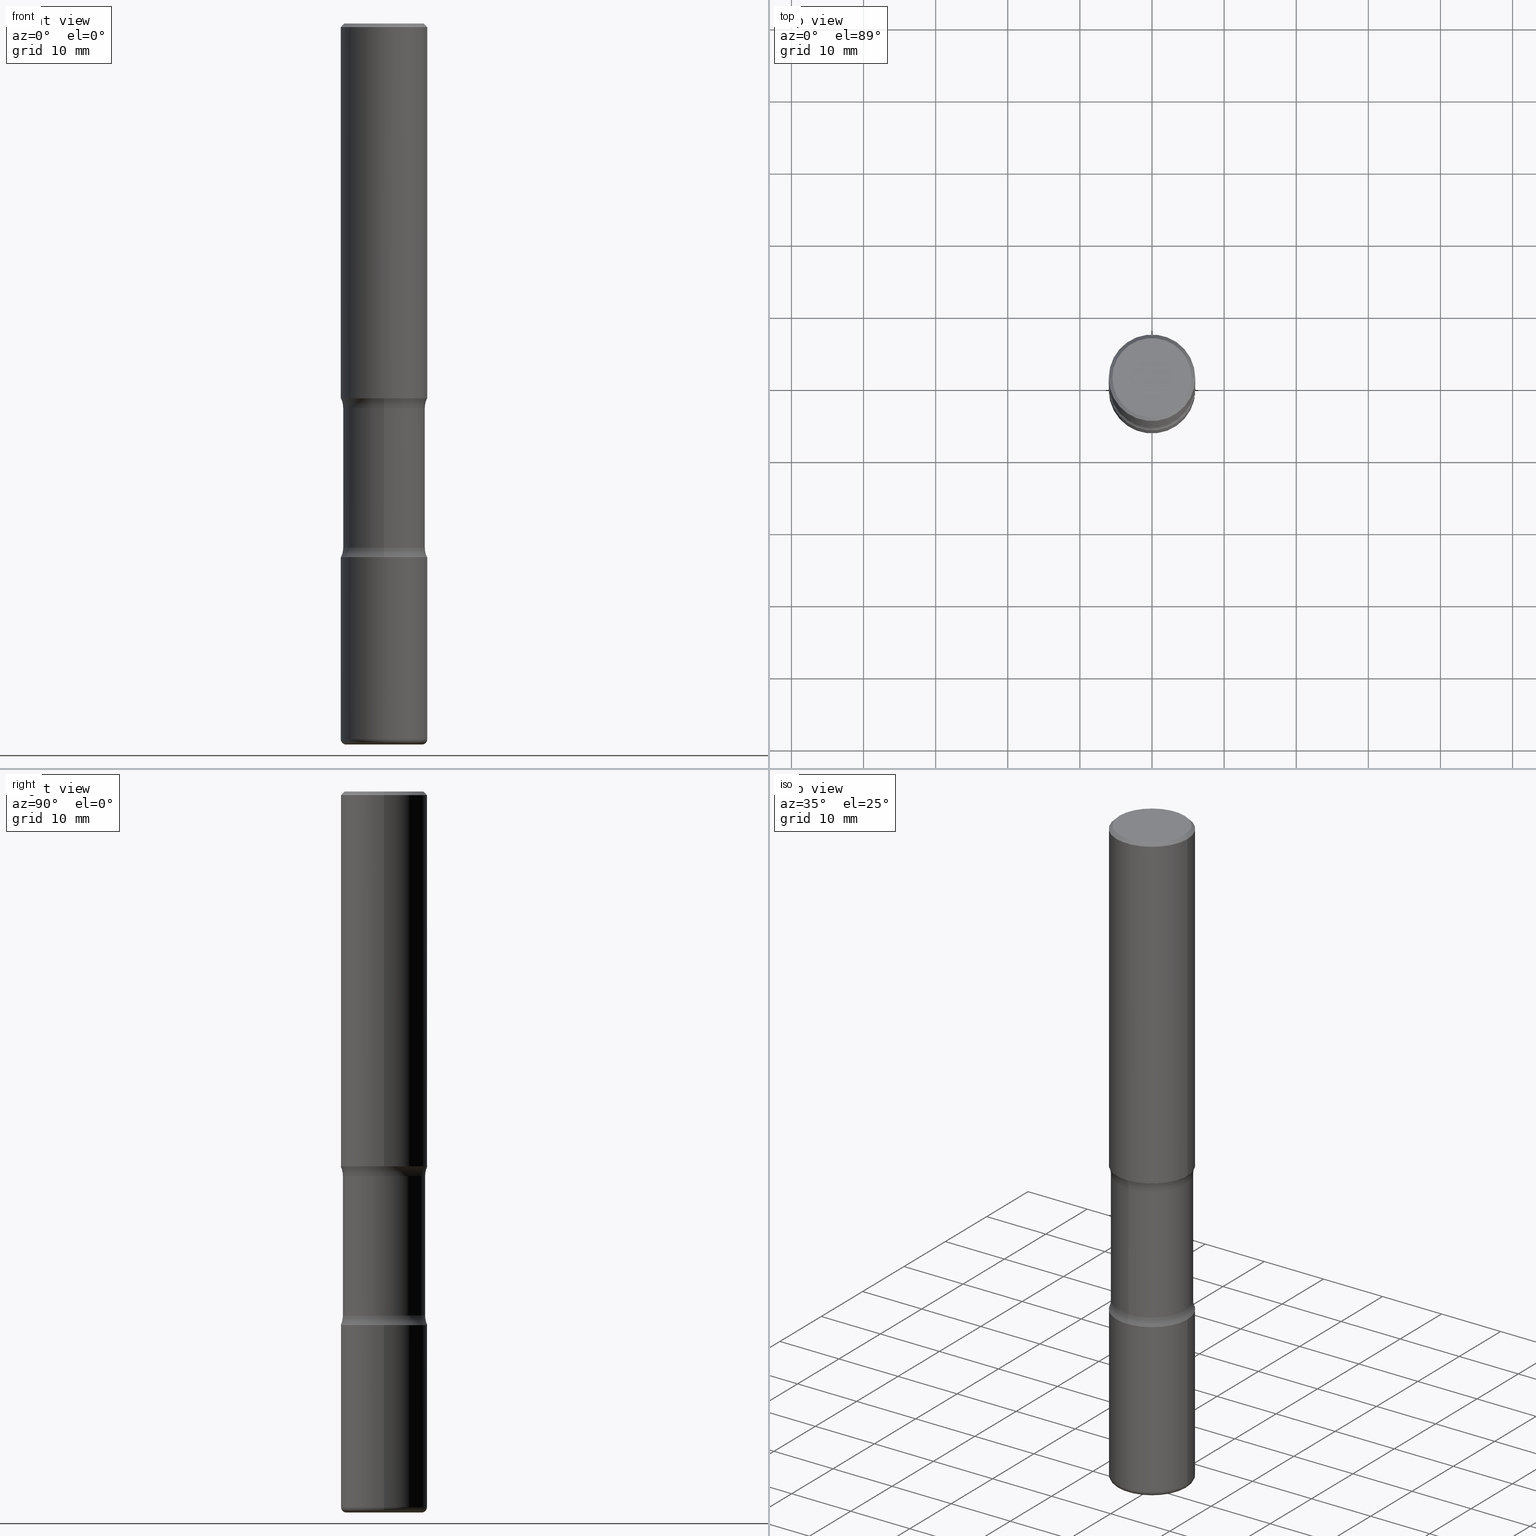
[diagram: canonical four-view strip — front | top / right | iso, engineering-drawing reading convention]
A machine part, canonical four-view strip (front | top / right | iso — engineering-drawing reading convention). The complete STEP part file that produces these views, byte-faithful:
ISO-10303-21;
HEADER;
FILE_DESCRIPTION (( 'STEP AP203' ),
    '1' );
FILE_NAME ('47695.STEP',
    '2024-03-02T07:20:39',
    ( '' ),
    ( '' ),
    'SwSTEP 2.0',
    'SolidWorks 2023',
    '' );
FILE_SCHEMA (( 'CONFIG_CONTROL_DESIGN' ));
ENDSEC;

DATA;
#1 = ORIENTED_EDGE ( 'NONE', *, *, #227, .F. ) ;
#2 = ORIENTED_EDGE ( 'NONE', *, *, #40, .T. ) ;
#3 = AXIS2_PLACEMENT_3D ( 'NONE', #316, #319, #182 ) ;
#4 = PLANE ( 'NONE',  #226 ) ;
#5 = CC_DESIGN_PERSON_AND_ORGANIZATION_ASSIGNMENT ( #308, #270, ( #353 ) ) ;
#6 = CARTESIAN_POINT ( 'NONE',  ( -0.2361999999999999933, 1.678301941865356591E-15, -1.161852468318208757E-29 ) ) ;
#7 = CARTESIAN_POINT ( 'NONE',  ( 1.566976824872894642E-15, 0.2243999999999863049, -3.937000000000000721 ) ) ;
#8 = COORDINATED_UNIVERSAL_TIME_OFFSET ( 5, 0, .BEHIND. ) ;
#9 = FACE_OUTER_BOUND ( 'NONE', #93, .T. ) ;
#10 = VERTEX_POINT ( 'NONE', #262 ) ;
#11 = CARTESIAN_POINT ( 'NONE',  ( 1.566976824872867821E-15, 0.2243999999999899686, -2.860383398826405799 ) ) ;
#12 =( NAMED_UNIT ( * ) SI_UNIT ( $, .STERADIAN. ) SOLID_ANGLE_UNIT ( ) );
#13 = CARTESIAN_POINT ( 'NONE',  ( 0.2361999999999999933, -1.649375784469496131E-15, 1.151752954443000088E-29 ) ) ;
#14 = FACE_OUTER_BOUND ( 'NONE', #55, .T. ) ;
#15 = ORIENTED_EDGE ( 'NONE', *, *, #497, .F. ) ;
#16 = CIRCLE ( 'NONE', #3, 0.2161999999999998368 ) ;
#17 = PERSON_AND_ORGANIZATION ( #84, #499 ) ;
#18 = SECURITY_CLASSIFICATION ( '', '', #145 ) ;
#19 = CARTESIAN_POINT ( 'NONE',  ( 7.124628819939777829E-29, -1.017208173258562247E-14, -2.913400000000000212 ) ) ;
#20 = ORIENTED_EDGE ( 'NONE', *, *, #526, .F. ) ;
#21 = CARTESIAN_POINT ( 'NONE',  ( 9.554446625765329033E-29, -1.364121759086017004E-14, -3.907000000000000028 ) ) ;
#22 = DIRECTION ( 'NONE',  ( -2.445468806185136597E-29, 3.491481338843145583E-15, 1.000000000000000000 ) ) ;
#23 = ADVANCED_FACE ( 'NONE', ( #274 ), #444, .F. ) ;
#24 = DIRECTION ( 'NONE',  ( -2.445468806185136877E-29, 3.491481338843145188E-15, 1.000000000000000000 ) ) ;
#25 = CONICAL_SURFACE ( 'NONE', #320, 0.2361999999999998823, 0.7853981633974479459 ) ;
#26 = CIRCLE ( 'NONE', #356, 0.1249999999999999029 ) ;
#27 = APPLICATION_CONTEXT ( 'configuration controlled 3d designs of mechanical parts and assemblies' ) ;
#28 =( GEOMETRIC_REPRESENTATION_CONTEXT ( 3 ) GLOBAL_UNCERTAINTY_ASSIGNED_CONTEXT ( ( #240 ) ) GLOBAL_UNIT_ASSIGNED_CONTEXT ( ( #87, #115, #12 ) ) REPRESENTATION_CONTEXT ( 'NONE', 'WORKASPACE' ) );
#29 = LOCAL_TIME ( 2, 20, 39.00000000000000000, #52 ) ;
#30 = DIRECTION ( 'NONE',  ( 0.7071067811865472397, -7.319954787623254468E-15, -0.7071067811865477948 ) ) ;
#31 = LINE ( 'NONE', #61, #199 ) ;
#32 = DIRECTION ( 'NONE',  ( 1.000000000000000000, -6.982962677686267499E-15, 0.000000000000000000 ) ) ;
#33 = VERTEX_POINT ( 'NONE', #216 ) ;
#34 = APPROVAL ( #264, 'UNSPECIFIED' ) ;
#35 = AXIS2_PLACEMENT_3D ( 'NONE', #184, #46, #358 ) ;
#36 = AXIS2_PLACEMENT_3D ( 'NONE', #171, #306, #138 ) ;
#37 = DIRECTION ( 'NONE',  ( 6.982962677686265922E-15, 1.000000000000000000, -3.469747663417773452E-15 ) ) ;
#38 = ORIENTED_EDGE ( 'NONE', *, *, #279, .T. ) ;
#39 = ORIENTED_EDGE ( 'NONE', *, *, #488, .F. ) ;
#40 = EDGE_CURVE ( 'NONE', #170, #33, #536, .T. ) ;
#41 = VECTOR ( 'NONE', #281, 39.37007874015748143 ) ;
#42 = VERTEX_POINT ( 'NONE', #144 ) ;
#43 = CARTESIAN_POINT ( 'NONE',  ( 9.710227154047748282E-29, -1.362793696358492956E-14, -3.937000000000000277 ) ) ;
#44 = ORIENTED_EDGE ( 'NONE', *, *, #550, .F. ) ;
#45 = ADVANCED_FACE ( 'NONE', ( #450 ), #397, .F. ) ;
#46 = DIRECTION ( 'NONE',  ( 2.438088387897960049E-29, -3.491481338843145188E-15, -1.000000000000000000 ) ) ;
#47 = MANIFOLD_SOLID_BREP ( 'Body-Move/Copy2[2]', #120 ) ;
#48 = AXIS2_PLACEMENT_3D ( 'NONE', #282, #232, #464 ) ;
#49 = DIRECTION ( 'NONE',  ( 2.525985086076564115E-29, -3.376177443336566513E-15, -1.000000000000000000 ) ) ;
#50 = ORIENTED_EDGE ( 'NONE', *, *, #550, .T. ) ;
#51 = CARTESIAN_POINT ( 'NONE',  ( 6.994978375559792251E-29, -9.986975258939122984E-15, -2.860383398826405354 ) ) ;
#52 = COORDINATED_UNIVERSAL_TIME_OFFSET ( 5, 0, .BEHIND. ) ;
#53 = ORIENTED_EDGE ( 'NONE', *, *, #474, .F. ) ;
#54 = CC_DESIGN_DATE_AND_TIME_ASSIGNMENT ( #401, #535, ( #353 ) ) ;
#55 = EDGE_LOOP ( 'NONE', ( #484, #62, #71, #237 ) ) ;
#56 = CARTESIAN_POINT ( 'NONE',  ( -1.579972688886713168E-15, -0.2244000000000099804, -2.860383398826404466 ) ) ;
#57 = DIRECTION ( 'NONE',  ( 2.525985086076564115E-29, -3.376177443336566513E-15, -1.000000000000000000 ) ) ;
#58 = AXIS2_PLACEMENT_3D ( 'NONE', #135, #57, #268 ) ;
#59 = AXIS2_PLACEMENT_3D ( 'NONE', #512, #294, #32 ) ;
#60 = ORIENTED_EDGE ( 'NONE', *, *, #509, .F. ) ;
#61 = CARTESIAN_POINT ( 'NONE',  ( 0.2362000000000002153, -1.649375784469497708E-15, 1.151752954443001069E-29 ) ) ;
#62 = ORIENTED_EDGE ( 'NONE', *, *, #214, .T. ) ;
#63 = AXIS2_PLACEMENT_3D ( 'NONE', #288, #545, #153 ) ;
#64 = AXIS2_PLACEMENT_3D ( 'NONE', #21, #543, #400 ) ;
#65 = LOCAL_TIME ( 2, 20, 39.00000000000000000, #207 ) ;
#66 = DIRECTION ( 'NONE',  ( 6.982962677686265922E-15, 1.000000000000000000, -2.313165108945183485E-15 ) ) ;
#67 = ORIENTED_EDGE ( 'NONE', *, *, #86, .T. ) ;
#68 = CARTESIAN_POINT ( 'NONE',  ( -1.043851414335219820E-46, 1.490343170380447200E-32, 4.268512490100411279E-18 ) ) ;
#69 = ADVANCED_FACE ( 'NONE', ( #9 ), #25, .T. ) ;
#70 = CARTESIAN_POINT ( 'NONE',  ( -0.2362000000000001598, -1.930493169962915017E-15, -2.047200000000000131 ) ) ;
#71 = ORIENTED_EDGE ( 'NONE', *, *, #227, .T. ) ;
#72 = CIRCLE ( 'NONE', #393, 0.2362000000000001321 ) ;
#73 = AXIS2_PLACEMENT_3D ( 'NONE', #326, #200, #371 ) ;
#74 = ORIENTED_EDGE ( 'NONE', *, *, #208, .F. ) ;
#75 = DIRECTION ( 'NONE',  ( 2.438088387897960049E-29, -3.491481338843145188E-15, -1.000000000000000000 ) ) ;
#76 = FACE_OUTER_BOUND ( 'NONE', #480, .T. ) ;
#77 = ADVANCED_FACE ( 'NONE', ( #140 ), #389, .T. ) ;
#78 = ORIENTED_EDGE ( 'NONE', *, *, #279, .F. ) ;
#79 = CARTESIAN_POINT ( 'NONE',  ( 5.006363740022212241E-29, -7.147760596879688202E-15, -2.047200000000000131 ) ) ;
#80 = FACE_OUTER_BOUND ( 'NONE', #528, .T. ) ;
#81 = CLOSED_SHELL ( 'NONE', ( #77, #365, #558, #479, #45, #305, #119, #313 ) ) ;
#82 = AXIS2_PLACEMENT_3D ( 'NONE', #449, #146, #142 ) ;
#83 = EDGE_LOOP ( 'NONE', ( #301, #50, #533, #272 ) ) ;
#84 = PERSON ( 'UNSPECIFIED', 'UNSPECIFIED', 'UNSPECIFIED', ('UNSPECIFIED'), ('UNSPECIFIED'), ('UNSPECIFIED') ) ;
#85 = EDGE_LOOP ( 'NONE', ( #159, #60 ) ) ;
#86 = EDGE_CURVE ( 'NONE', #515, #447, #373, .T. ) ;
#87 =( CONVERSION_BASED_UNIT ( 'INCH', #377 ) LENGTH_UNIT ( ) NAMED_UNIT ( #363 ) );
#88 = LINE ( 'NONE', #13, #41 ) ;
#89 = ORIENTED_EDGE ( 'NONE', *, *, #391, .F. ) ;
#90 = DIRECTION ( 'NONE',  ( 2.525985086076564115E-29, -3.376177443336566513E-15, -1.000000000000000000 ) ) ;
#91 = PERSON_AND_ORGANIZATION_ROLE ( 'design_owner' ) ;
#92 = CIRCLE ( 'NONE', #381, 0.2362000000000001321 ) ;
#93 = EDGE_LOOP ( 'NONE', ( #161, #552, #99, #98 ) ) ;
#94 = CIRCLE ( 'NONE', #233, 0.2243999999999999606 ) ;
#95 = CARTESIAN_POINT ( 'NONE',  ( -1.620449627073587747E-15, -0.2362000000000074318, -2.047199999999999243 ) ) ;
#96 = CARTESIAN_POINT ( 'NONE',  ( -0.2362000000000000766, -1.196291564899481365E-14, -3.907000000000000028 ) ) ;
#97 = EDGE_CURVE ( 'NONE', #204, #430, #156, .T. ) ;
#98 = ORIENTED_EDGE ( 'NONE', *, *, #202, .T. ) ;
#99 = ORIENTED_EDGE ( 'NONE', *, *, #372, .T. ) ;
#100 = PERSON_AND_ORGANIZATION_ROLE ( 'design_supplier' ) ;
#101 = DIRECTION ( 'NONE',  ( 2.525985086076564115E-29, -3.376177443336566513E-15, -1.000000000000000000 ) ) ;
#102 = AXIS2_PLACEMENT_3D ( 'NONE', #331, #511, #505 ) ;
#103 = AXIS2_PLACEMENT_3D ( 'NONE', #388, #299, #483 ) ;
#104 = DIRECTION ( 'NONE',  ( 2.525985086076564115E-29, -3.376177443336566513E-15, -1.000000000000000000 ) ) ;
#105 = ADVANCED_FACE ( 'NONE', ( #14 ), #183, .T. ) ;
#106 = FACE_OUTER_BOUND ( 'NONE', #298, .T. ) ;
#107 = DIRECTION ( 'NONE',  ( -2.445468806185136597E-29, 3.491481338843145583E-15, 1.000000000000000000 ) ) ;
#108 = DIRECTION ( 'NONE',  ( 6.982962677686265922E-15, 1.000000000000000000, -2.313165108945183485E-15 ) ) ;
#109 = TOROIDAL_SURFACE ( 'NONE', #547, 0.3493999999999998218, 0.1249999999999999029 ) ;
#110 = AXIS2_PLACEMENT_3D ( 'NONE', #446, #251, #493 ) ;
#111 = CC_DESIGN_PERSON_AND_ORGANIZATION_ASSIGNMENT ( #343, #91, ( #445 ) ) ;
#112 = CARTESIAN_POINT ( 'NONE',  ( 0.2362000000000000766, -1.529059337532966657E-14, -3.907000000000000028 ) ) ;
#113 = ORIENTED_EDGE ( 'NONE', *, *, #287, .T. ) ;
#114 = EDGE_LOOP ( 'NONE', ( #38, #551 ) ) ;
#115 =( NAMED_UNIT ( * ) PLANE_ANGLE_UNIT ( ) SI_UNIT ( $, .RADIAN. ) );
#116 = ORIENTED_EDGE ( 'NONE', *, *, #137, .T. ) ;
#117 = DIRECTION ( 'NONE',  ( 1.000000000000000000, -6.982962677686266711E-15, 4.876217060660159599E-29 ) ) ;
#118 = VERTEX_POINT ( 'NONE', #420 ) ;
#119 = ADVANCED_FACE ( 'NONE', ( #167 ), #309, .F. ) ;
#120 = CLOSED_SHELL ( 'NONE', ( #154, #336, #69, #518, #296, #105 ) ) ;
#121 = AXIS2_PLACEMENT_3D ( 'NONE', #79, #254, #429 ) ;
#122 = CARTESIAN_POINT ( 'NONE',  ( 6.990709676060807691E-29, -9.993088279580958225E-15, -2.860383398826405354 ) ) ;
#123 = ORIENTED_EDGE ( 'NONE', *, *, #443, .T. ) ;
#124 = DIRECTION ( 'NONE',  ( 6.982962677686265922E-15, 1.000000000000000000, -3.376177443336566513E-15 ) ) ;
#125 = DIRECTION ( 'NONE',  ( -2.525985086076564115E-29, 3.376177443336566513E-15, 1.000000000000000000 ) ) ;
#126 = EDGE_LOOP ( 'NONE', ( #295, #2, #53, #1 ) ) ;
#127 = DIRECTION ( 'NONE',  ( 2.525985086076564115E-29, -3.376177443336566513E-15, -1.000000000000000000 ) ) ;
#128 = AXIS2_PLACEMENT_3D ( 'NONE', #160, #197, #322 ) ;
#129 = ADVANCED_FACE ( 'NONE', ( #487 ), #418, .T. ) ;
#130 = VERTEX_POINT ( 'NONE', #285 ) ;
#131 = PRODUCT_DEFINITION_FORMATION_WITH_SPECIFIED_SOURCE ( 'ANY', '', #445, .NOT_KNOWN. ) ;
#132 = APPROVAL_DATE_TIME ( #339, #380 ) ;
#133 = ORIENTED_EDGE ( 'NONE', *, *, #391, .T. ) ;
#134 = DIRECTION ( 'NONE',  ( -2.438088387897960049E-29, 3.491481338843145188E-15, 1.000000000000000000 ) ) ;
#135 = CARTESIAN_POINT ( 'NONE',  ( 5.006363740022212241E-29, -7.147760596879688202E-15, -2.047200000000000131 ) ) ;
#136 = PRODUCT_DEFINITION_SHAPE ( 'NONE', 'NONE',  #353 ) ;
#137 = EDGE_CURVE ( 'NONE', #307, #10, #284, .T. ) ;
#138 = DIRECTION ( 'NONE',  ( -1.000000000000000000, 6.982962677686267499E-15, 0.000000000000000000 ) ) ;
#139 = CIRCLE ( 'NONE', #59, 0.2361999999999998823 ) ;
#140 = FACE_OUTER_BOUND ( 'NONE', #348, .T. ) ;
#141 = EDGE_LOOP ( 'NONE', ( #198, #330 ) ) ;
#142 = DIRECTION ( 'NONE',  ( 1.000000000000000000, -6.982962677686265133E-15, 0.000000000000000000 ) ) ;
#143 = DIRECTION ( 'NONE',  ( -2.445468806185136597E-29, 3.491481338843145583E-15, 1.000000000000000000 ) ) ;
#144 = CARTESIAN_POINT ( 'NONE',  ( -0.2062000000000002442, -1.212186927944147467E-14, -3.936999999999999389 ) ) ;
#145 = SECURITY_CLASSIFICATION_LEVEL ( 'unclassified' ) ;
#146 = DIRECTION ( 'NONE',  ( -2.445468806185136597E-29, 3.491481338843145583E-15, 1.000000000000000000 ) ) ;
#147 = DATE_TIME_ROLE ( 'classification_date' ) ;
#148 = EDGE_CURVE ( 'NONE', #164, #494, #31, .T. ) ;
#149 = AXIS2_PLACEMENT_3D ( 'NONE', #235, #413, #387 ) ;
#150 = DIRECTION ( 'NONE',  ( -2.445468806185136597E-29, 3.491481338843145583E-15, 1.000000000000000000 ) ) ;
#151 = DIRECTION ( 'NONE',  ( 1.000000000000000000, -6.982962677686266711E-15, 4.876176775795935793E-29 ) ) ;
#152 = CYLINDRICAL_SURFACE ( 'NONE', #374, 0.2362000000000002153 ) ;
#153 = DIRECTION ( 'NONE',  ( -1.000000000000000000, 6.982962677686265922E-15, -4.876176775795935793E-29 ) ) ;
#154 = ADVANCED_FACE ( 'NONE', ( #466 ), #457, .T. ) ;
#155 = CARTESIAN_POINT ( 'NONE',  ( 7.124628819939777829E-29, -1.017208173258562247E-14, -2.913400000000000212 ) ) ;
#156 = CIRCLE ( 'NONE', #341, 0.2362000000000002431 ) ;
#157 = AXIS2_PLACEMENT_3D ( 'NONE', #122, #548, #467 ) ;
#158 = CARTESIAN_POINT ( 'NONE',  ( -0.2362000000000001321, -1.022834771985753829E-14, -2.913400000000000212 ) ) ;
#159 = ORIENTED_EDGE ( 'NONE', *, *, #443, .F. ) ;
#160 = CARTESIAN_POINT ( 'NONE',  ( 9.627810689950881427E-29, -1.374596203102546184E-14, -3.936999999999999389 ) ) ;
#161 = ORIENTED_EDGE ( 'NONE', *, *, #137, .F. ) ;
#162 = PRODUCT_RELATED_PRODUCT_CATEGORY ( 'detail', '', ( #445 ) ) ;
#163 = CIRCLE ( 'NONE', #431, 0.1249999999999999029 ) ;
#164 = VERTEX_POINT ( 'NONE', #112 ) ;
#165 = CARTESIAN_POINT ( 'NONE',  ( 5.088323202950023588E-29, -7.401163270367792936E-15, -2.100216601173595432 ) ) ;
#166 = FACE_OUTER_BOUND ( 'NONE', #379, .T. ) ;
#167 = FACE_OUTER_BOUND ( 'NONE', #510, .T. ) ;
#168 = CARTESIAN_POINT ( 'NONE',  ( 5.006363740022212241E-29, -7.147760596879688202E-15, -2.047200000000000131 ) ) ;
#169 = EDGE_CURVE ( 'NONE', #130, #515, #72, .T. ) ;
#170 = VERTEX_POINT ( 'NONE', #70 ) ;
#171 = CARTESIAN_POINT ( 'NONE',  ( 4.890937612370289799E-31, -6.982962677686315028E-17, -0.02000000000000006981 ) ) ;
#172 = AXIS2_PLACEMENT_3D ( 'NONE', #500, #107, #459 ) ;
#173 = ORIENTED_EDGE ( 'NONE', *, *, #542, .T. ) ;
#174 = APPROVAL_PERSON_ORGANIZATION ( #323, #321, #460 ) ;
#175 = DIRECTION ( 'NONE',  ( -1.000000000000000000, 6.982962677686265922E-15, -4.883557194083112340E-29 ) ) ;
#176 = DIRECTION ( 'NONE',  ( -2.445468806185136877E-29, 3.491481338843145188E-15, 1.000000000000000000 ) ) ;
#177 = EDGE_CURVE ( 'NONE', #560, #555, #302, .T. ) ;
#178 = FACE_OUTER_BOUND ( 'NONE', #221, .T. ) ;
#179 = CALENDAR_DATE ( 2024, 2, 3 ) ;
#180 = CARTESIAN_POINT ( 'NONE',  ( 4.890937612370289799E-31, -6.982962677686315028E-17, -0.02000000000000006981 ) ) ;
#181 = ORIENTED_EDGE ( 'NONE', *, *, #372, .F. ) ;
#182 = DIRECTION ( 'NONE',  ( 1.000000000000000000, -6.982962677686266711E-15, 4.876217060660159599E-29 ) ) ;
#183 = CYLINDRICAL_SURFACE ( 'NONE', #102, 0.2361999999999999933 ) ;
#184 = CARTESIAN_POINT ( 'NONE',  ( 7.124628819939777829E-29, -1.017208173258562247E-14, -2.913400000000000212 ) ) ;
#185 = CIRCLE ( 'NONE', #503, 0.2161999999999998368 ) ;
#186 = LOCAL_TIME ( 2, 20, 39.00000000000000000, #8 ) ;
#187 = PERSON_AND_ORGANIZATION_ROLE ( 'creator' ) ;
#188 = EDGE_CURVE ( 'NONE', #430, #204, #266, .T. ) ;
#189 = AXIS2_PLACEMENT_3D ( 'NONE', #465, #150, #328 ) ;
#190 = PLANE ( 'NONE',  #523 ) ;
#191 = AXIS2_PLACEMENT_3D ( 'NONE', #456, #22, #362 ) ;
#192 = AXIS2_PLACEMENT_3D ( 'NONE', #155, #412, #108 ) ;
#193 = CARTESIAN_POINT ( 'NONE',  ( 1.649375784469567917E-15, 0.2361999999999899458, -2.913400000000000656 ) ) ;
#194 = EDGE_CURVE ( 'NONE', #496, #170, #92, .T. ) ;
#195 = CARTESIAN_POINT ( 'NONE',  ( 9.554446625765329033E-29, -1.364121759086017004E-14, -3.907000000000000028 ) ) ;
#196 = DIRECTION ( 'NONE',  ( 6.982962677686265922E-15, 1.000000000000000000, -2.434802133390609421E-15 ) ) ;
#197 = DIRECTION ( 'NONE',  ( -2.445468806185136597E-29, 3.491481338843145583E-15, 1.000000000000000000 ) ) ;
#198 = ORIENTED_EDGE ( 'NONE', *, *, #231, .T. ) ;
#199 = VECTOR ( 'NONE', #24, 39.37007874015748143 ) ;
#200 = DIRECTION ( 'NONE',  ( -2.445468806185136597E-29, 3.491481338843145583E-15, 1.000000000000000000 ) ) ;
#201 = CIRCLE ( 'NONE', #541, 0.02999999999999967970 ) ;
#202 = EDGE_CURVE ( 'NONE', #33, #10, #139, .T. ) ;
#203 = DIRECTION ( 'NONE',  ( 6.982962677686265922E-15, 1.000000000000000000, -3.469747663417773452E-15 ) ) ;
#204 = VERTEX_POINT ( 'NONE', #477 ) ;
#205 = AXIS2_PLACEMENT_3D ( 'NONE', #502, #417, #243 ) ;
#206 = EDGE_LOOP ( 'NONE', ( #123, #402, #486, #369 ) ) ;
#207 = COORDINATED_UNIVERSAL_TIME_OFFSET ( 5, 0, .BEHIND. ) ;
#208 = EDGE_CURVE ( 'NONE', #447, #271, #310, .T. ) ;
#209 = CARTESIAN_POINT ( 'NONE',  ( 5.070539682259229331E-29, -7.426630284172150130E-15, -2.100216601173595432 ) ) ;
#210 = VERTEX_POINT ( 'NONE', #475 ) ;
#211 = DIRECTION ( 'NONE',  ( 6.982962677686265922E-15, 1.000000000000000000, -2.434802133390609815E-15 ) ) ;
#212 = CARTESIAN_POINT ( 'NONE',  ( 0.000000000000000000, 0.000000000000000000, 0.000000000000000000 ) ) ;
#213 = VECTOR ( 'NONE', #368, 39.37007874015748143 ) ;
#214 = EDGE_CURVE ( 'NONE', #170, #496, #452, .T. ) ;
#215 = CIRCLE ( 'NONE', #191, 0.2362000000000002431 ) ;
#216 = CARTESIAN_POINT ( 'NONE',  ( -0.2361999999999998823, 1.579546157692632438E-15, -0.02000000000000006981 ) ) ;
#217 = APPROVAL_PERSON_ORGANIZATION ( #290, #34, #220 ) ;
#218 = ORIENTED_EDGE ( 'NONE', *, *, #177, .T. ) ;
#219 = DIRECTION ( 'NONE',  ( 1.000000000000000000, -6.860497997771530774E-15, 4.842210945089756248E-29 ) ) ;
#220 = APPROVAL_ROLE ( '' ) ;
#221 = EDGE_LOOP ( 'NONE', ( #173, #248 ) ) ;
#222 = CALENDAR_DATE ( 2024, 2, 3 ) ;
#223 = ORIENTED_EDGE ( 'NONE', *, *, #148, .T. ) ;
#224 = DATE_AND_TIME ( #273, #504 ) ;
#225 = VERTEX_POINT ( 'NONE', #259 ) ;
#226 = AXIS2_PLACEMENT_3D ( 'NONE', #168, #134, #261 ) ;
#227 = EDGE_CURVE ( 'NONE', #496, #10, #88, .T. ) ;
#228 = PERSON_AND_ORGANIZATION ( #84, #499 ) ;
#229 = MANIFOLD_SOLID_BREP ( 'Body-Move/Copy2[1]', #513 ) ;
#230 = DIRECTION ( 'NONE',  ( 2.525985086076564115E-29, -3.376177443336566513E-15, -1.000000000000000000 ) ) ;
#231 = EDGE_CURVE ( 'NONE', #392, #307, #16, .T. ) ;
#232 = DIRECTION ( 'NONE',  ( -6.982962677686266711E-15, -1.000000000000000000, 3.491481338843145583E-15 ) ) ;
#233 = AXIS2_PLACEMENT_3D ( 'NONE', #209, #90, #263 ) ;
#234 = DIRECTION ( 'NONE',  ( 2.525985086076564115E-29, -3.376177443336566513E-15, -1.000000000000000000 ) ) ;
#235 = CARTESIAN_POINT ( 'NONE',  ( 2.439847159583651160E-15, 0.3493999999999899964, -2.860383398826406243 ) ) ;
#236 = DIRECTION ( 'NONE',  ( -2.445468806185136597E-29, 3.491481338843145583E-15, 1.000000000000000000 ) ) ;
#237 = ORIENTED_EDGE ( 'NONE', *, *, #202, .F. ) ;
#238 = DIRECTION ( 'NONE',  ( 2.525985086076564115E-29, -3.376177443336566513E-15, -1.000000000000000000 ) ) ;
#239 = CARTESIAN_POINT ( 'NONE',  ( 7.124628819939777829E-29, -1.017208173258562247E-14, -2.913400000000000212 ) ) ;
#240 = UNCERTAINTY_MEASURE_WITH_UNIT (LENGTH_MEASURE( 1.000000000000000082E-05 ), #87, 'distance_accuracy_value', 'NONE');
#241 = CARTESIAN_POINT ( 'NONE',  ( 0.000000000000000000, 0.000000000000000000, 0.000000000000000000 ) ) ;
#242 = EDGE_LOOP ( 'NONE', ( #311, #338 ) ) ;
#243 = DIRECTION ( 'NONE',  ( 1.000000000000000000, -6.982962677686267499E-15, 0.000000000000000000 ) ) ;
#244 = AXIS2_PLACEMENT_3D ( 'NONE', #495, #101, #196 ) ;
#245 = EDGE_CURVE ( 'NONE', #164, #560, #215, .T. ) ;
#246 = APPROVAL_PERSON_ORGANIZATION ( #318, #380, #506 ) ;
#247 =( LENGTH_UNIT ( ) NAMED_UNIT ( * ) SI_UNIT ( $, .METRE. ) );
#248 = ORIENTED_EDGE ( 'NONE', *, *, #169, .T. ) ;
#249 = DIRECTION ( 'NONE',  ( -1.000000000000000000, 6.982962677686265922E-15, -4.876176775795935793E-29 ) ) ;
#250 = CARTESIAN_POINT ( 'NONE',  ( -2.397058000421302516E-15, -0.3494000000000099249, -2.860383398826404022 ) ) ;
#251 = DIRECTION ( 'NONE',  ( 2.525985086076564115E-29, -3.376177443336566513E-15, -1.000000000000000000 ) ) ;
#252 = EDGE_LOOP ( 'NONE', ( #385, #469, #223, #20 ) ) ;
#253 = LINE ( 'NONE', #432, #514 ) ;
#254 = DIRECTION ( 'NONE',  ( -2.445468806185136597E-29, 3.491481338843145583E-15, 1.000000000000000000 ) ) ;
#255 = ORIENTED_EDGE ( 'NONE', *, *, #194, .F. ) ;
#256 = PLANE ( 'NONE',  #283 ) ;
#257 = ORIENTED_EDGE ( 'NONE', *, *, #509, .T. ) ;
#258 = CARTESIAN_POINT ( 'NONE',  ( -2.397058000421320660E-15, -0.3494000000000072048, -2.100216601173594544 ) ) ;
#259 = CARTESIAN_POINT ( 'NONE',  ( 1.566976824872848494E-15, 0.2243999999999925499, -2.100216601173596320 ) ) ;
#260 = ORIENTED_EDGE ( 'NONE', *, *, #329, .F. ) ;
#261 = DIRECTION ( 'NONE',  ( 1.000000000000000000, -6.982962677686265922E-15, 4.876176775795935793E-29 ) ) ;
#262 = CARTESIAN_POINT ( 'NONE',  ( 0.2361999999999998823, -1.690279253850498179E-15, -0.02000000000000006981 ) ) ;
#263 = DIRECTION ( 'NONE',  ( 6.982962677686265922E-15, 1.000000000000000000, -3.652203200085913934E-15 ) ) ;
#264 = APPROVAL_STATUS ( 'not_yet_approved' ) ;
#265 = CC_DESIGN_PERSON_AND_ORGANIZATION_ASSIGNMENT ( #17, #187, ( #131 ) ) ;
#266 = CIRCLE ( 'NONE', #334, 0.2362000000000002431 ) ;
#267 = CONICAL_SURFACE ( 'NONE', #36, 0.2361999999999998823, 0.7853981633974479459 ) ;
#268 = DIRECTION ( 'NONE',  ( 6.982962677686265922E-15, 1.000000000000000000, -3.376177443336566513E-15 ) ) ;
#269 = ORIENTED_EDGE ( 'NONE', *, *, #329, .T. ) ;
#270 = PERSON_AND_ORGANIZATION_ROLE ( 'creator' ) ;
#271 = VERTEX_POINT ( 'NONE', #56 ) ;
#272 = ORIENTED_EDGE ( 'NONE', *, *, #287, .F. ) ;
#273 = CALENDAR_DATE ( 2024, 2, 3 ) ;
#274 = FACE_OUTER_BOUND ( 'NONE', #114, .T. ) ;
#275 = ADVANCED_FACE ( 'NONE', ( #106 ), #355, .T. ) ;
#276 = CIRCLE ( 'NONE', #382, 0.2362000000000001321 ) ;
#277 = CC_DESIGN_APPROVAL ( #321, ( #131 ) ) ;
#278 = CARTESIAN_POINT ( 'NONE',  ( 0.2361999999999998823, -1.690279253850498179E-15, -0.02000000000000006981 ) ) ;
#279 = EDGE_CURVE ( 'NONE', #494, #555, #276, .T. ) ;
#280 = CARTESIAN_POINT ( 'NONE',  ( 0.000000000000000000, 0.000000000000000000, 0.000000000000000000 ) ) ;
#281 = DIRECTION ( 'NONE',  ( -2.445468806185136877E-29, 3.491481338843145188E-15, 1.000000000000000000 ) ) ;
#282 = CARTESIAN_POINT ( 'NONE',  ( 0.2062000000000002442, -1.508110449499907983E-14, -3.907000000000000028 ) ) ;
#283 = AXIS2_PLACEMENT_3D ( 'NONE', #384, #125, #492 ) ;
#284 = LINE ( 'NONE', #278, #410 ) ;
#285 = CARTESIAN_POINT ( 'NONE',  ( -1.620449627073565067E-15, -0.2362000000000102629, -2.913399999999999768 ) ) ;
#286 = CARTESIAN_POINT ( 'NONE',  ( 0.2362000000000001321, -8.797136381349186305E-15, -2.047200000000000131 ) ) ;
#287 = EDGE_CURVE ( 'NONE', #271, #447, #482, .T. ) ;
#288 = CARTESIAN_POINT ( 'NONE',  ( 1.691236525744688514E-28, -3.314065279273575751E-15, -3.937000000000000277 ) ) ;
#289 = CARTESIAN_POINT ( 'NONE',  ( 4.936620538380257512E-29, -7.247636831167487464E-15, -2.047200000000000131 ) ) ;
#290 = PERSON_AND_ORGANIZATION ( #84, #499 ) ;
#291 = CARTESIAN_POINT ( 'NONE',  ( 1.509716530915769534E-15, 0.2161999999999998368, -7.527240092128373149E-16 ) ) ;
#292 = AXIS2_PLACEMENT_3D ( 'NONE', #195, #473, #546 ) ;
#293 = CC_DESIGN_APPROVAL ( #34, ( #353 ) ) ;
#294 = DIRECTION ( 'NONE',  ( -2.445468806185136597E-29, 3.491481338843145583E-15, 1.000000000000000000 ) ) ;
#295 = ORIENTED_EDGE ( 'NONE', *, *, #194, .T. ) ;
#296 = ADVANCED_FACE ( 'NONE', ( #340 ), #4, .F. ) ;
#297 = DIRECTION ( 'NONE',  ( 1.000000000000000000, -6.860497997771530774E-15, 4.842210945089756248E-29 ) ) ;
#298 = EDGE_LOOP ( 'NONE', ( #407, #218, #78, #438 ) ) ;
#299 = DIRECTION ( 'NONE',  ( 2.525985086076564115E-29, -3.376177443336566513E-15, -1.000000000000000000 ) ) ;
#300 = CIRCLE ( 'NONE', #292, 0.2362000000000002431 ) ;
#301 = ORIENTED_EDGE ( 'NONE', *, *, #345, .F. ) ;
#302 = LINE ( 'NONE', #361, #213 ) ;
#303 = MECHANICAL_CONTEXT ( 'NONE', #27, 'mechanical' ) ;
#304 = ORIENTED_EDGE ( 'NONE', *, *, #539, .T. ) ;
#305 = ADVANCED_FACE ( 'NONE', ( #178 ), #256, .F. ) ;
#306 = DIRECTION ( 'NONE',  ( 2.445468806185136597E-29, -3.491481338843145583E-15, -1.000000000000000000 ) ) ;
#307 = VERTEX_POINT ( 'NONE', #520 ) ;
#308 = PERSON_AND_ORGANIZATION ( #84, #499 ) ;
#309 = TOROIDAL_SURFACE ( 'NONE', #481, 0.3493999999999999884, 0.1250000000000000000 ) ;
#310 = CIRCLE ( 'NONE', #157, 0.2243999999999999606 ) ;
#311 = ORIENTED_EDGE ( 'NONE', *, *, #97, .F. ) ;
#312 = DIRECTION ( 'NONE',  ( 1.000000000000000000, -6.982962677686269077E-15, 0.000000000000000000 ) ) ;
#313 = ADVANCED_FACE ( 'NONE', ( #390 ), #436, .T. ) ;
#314 = EDGE_LOOP ( 'NONE', ( #557, #257, #304, #395 ) ) ;
#315 = PERSON_AND_ORGANIZATION_ROLE ( 'classification_officer' ) ;
#316 = CARTESIAN_POINT ( 'NONE',  ( -1.043851414335219820E-46, 1.490343170380447200E-32, 4.268512490100411279E-18 ) ) ;
#317 = CC_DESIGN_PERSON_AND_ORGANIZATION_ASSIGNMENT ( #538, #100, ( #131 ) ) ;
#318 = PERSON_AND_ORGANIZATION ( #84, #499 ) ;
#319 = DIRECTION ( 'NONE',  ( -2.445468806185136597E-29, 3.491481338843145583E-15, 1.000000000000000000 ) ) ;
#320 = AXIS2_PLACEMENT_3D ( 'NONE', #180, #351, #531 ) ;
#321 = APPROVAL ( #408, 'UNSPECIFIED' ) ;
#322 = DIRECTION ( 'NONE',  ( 1.000000000000000000, -6.982962677686265133E-15, 0.000000000000000000 ) ) ;
#323 = PERSON_AND_ORGANIZATION ( #84, #499 ) ;
#324 = DIRECTION ( 'NONE',  ( 6.982962677686265922E-15, 1.000000000000000000, -3.652203200085913934E-15 ) ) ;
#325 = ORIENTED_EDGE ( 'NONE', *, *, #188, .T. ) ;
#326 = CARTESIAN_POINT ( 'NONE',  ( 9.554446625765329033E-29, -1.364121759086017004E-14, -3.907000000000000028 ) ) ;
#327 = TOROIDAL_SURFACE ( 'NONE', #64, 0.2062000000000002442, 0.02999999999999969705 ) ;
#328 = DIRECTION ( 'NONE',  ( 1.000000000000000000, -6.982962677686266711E-15, 4.876176775795936353E-29 ) ) ;
#329 = EDGE_CURVE ( 'NONE', #225, #204, #163, .T. ) ;
#330 = ORIENTED_EDGE ( 'NONE', *, *, #497, .T. ) ;
#331 = CARTESIAN_POINT ( 'NONE',  ( 0.000000000000000000, 0.000000000000000000, 0.000000000000000000 ) ) ;
#332 = DIRECTION ( 'NONE',  ( 1.000000000000000000, -6.982962677686269077E-15, 0.000000000000000000 ) ) ;
#333 = ORIENTED_EDGE ( 'NONE', *, *, #406, .F. ) ;
#334 = AXIS2_PLACEMENT_3D ( 'NONE', #289, #238, #203 ) ;
#335 = VECTOR ( 'NONE', #527, 39.37007874015748143 ) ;
#336 = ADVANCED_FACE ( 'NONE', ( #166 ), #267, .T. ) ;
#337 = ORIENTED_EDGE ( 'NONE', *, *, #97, .T. ) ;
#338 = ORIENTED_EDGE ( 'NONE', *, *, #188, .F. ) ;
#339 = DATE_AND_TIME ( #386, #65 ) ;
#340 = FACE_OUTER_BOUND ( 'NONE', #346, .T. ) ;
#341 = AXIS2_PLACEMENT_3D ( 'NONE', #425, #421, #37 ) ;
#342 = CARTESIAN_POINT ( 'NONE',  ( -0.2361999999999998823, 1.579546157692632438E-15, -0.02000000000000006981 ) ) ;
#343 = PERSON_AND_ORGANIZATION ( #84, #499 ) ;
#344 = CIRCLE ( 'NONE', #172, 0.2362000000000001321 ) ;
#345 = EDGE_CURVE ( 'NONE', #210, #271, #253, .T. ) ;
#346 = EDGE_LOOP ( 'NONE', ( #255, #378 ) ) ;
#347 = LINE ( 'NONE', #342, #335 ) ;
#348 = EDGE_LOOP ( 'NONE', ( #490, #522, #74, #433 ) ) ;
#349 = DIRECTION ( 'NONE',  ( 2.525985086076564115E-29, -3.376177443336566513E-15, -1.000000000000000000 ) ) ;
#350 = DATE_AND_TIME ( #179, #186 ) ;
#351 = DIRECTION ( 'NONE',  ( 2.445468806185136597E-29, -3.491481338843145583E-15, -1.000000000000000000 ) ) ;
#352 = ORIENTED_EDGE ( 'NONE', *, *, #474, .T. ) ;
#353 = PRODUCT_DEFINITION ( 'UNKNOWN', '', #131, #428 ) ;
#354 = COORDINATED_UNIVERSAL_TIME_OFFSET ( 5, 0, .BEHIND. ) ;
#355 = CYLINDRICAL_SURFACE ( 'NONE', #422, 0.2362000000000002153 ) ;
#356 = AXIS2_PLACEMENT_3D ( 'NONE', #258, #219, #489 ) ;
#357 = TOROIDAL_SURFACE ( 'NONE', #110, 0.3493999999999998218, 0.1249999999999999029 ) ;
#358 = DIRECTION ( 'NONE',  ( -1.000000000000000000, 6.982962677686265922E-15, -4.876176775795935793E-29 ) ) ;
#359 = APPROVAL_STATUS ( 'not_yet_approved' ) ;
#360 = APPROVAL_DATE_TIME ( #224, #321 ) ;
#361 = CARTESIAN_POINT ( 'NONE',  ( -0.2362000000000002153, 1.678301941865358169E-15, -1.161852468318209878E-29 ) ) ;
#362 = DIRECTION ( 'NONE',  ( 1.000000000000000000, -6.982962677686265922E-15, 0.000000000000000000 ) ) ;
#363 = DIMENSIONAL_EXPONENTS ( 1.000000000000000000, 0.000000000000000000, 0.000000000000000000, 0.000000000000000000, 0.000000000000000000, 0.000000000000000000, 0.000000000000000000 ) ;
#364 = CIRCLE ( 'NONE', #128, 0.2062000000000002442 ) ;
#365 = ADVANCED_FACE ( 'NONE', ( #80 ), #491, .F. ) ;
#366 = FACE_OUTER_BOUND ( 'NONE', #314, .T. ) ;
#367 = CARTESIAN_POINT ( 'NONE',  ( 5.070539682259229331E-29, -7.426630284172150130E-15, -2.100216601173595432 ) ) ;
#368 = DIRECTION ( 'NONE',  ( -2.445468806185136877E-29, 3.491481338843145188E-15, 1.000000000000000000 ) ) ;
#369 = ORIENTED_EDGE ( 'NONE', *, *, #539, .F. ) ;
#370 = APPLICATION_CONTEXT ( 'configuration controlled 3d designs of mechanical parts and assemblies' ) ;
#371 = DIRECTION ( 'NONE',  ( 1.000000000000000000, -6.982962677686266711E-15, 4.883557194083113462E-29 ) ) ;
#372 = EDGE_CURVE ( 'NONE', #392, #33, #347, .T. ) ;
#373 = CIRCLE ( 'NONE', #149, 0.1250000000000000000 ) ;
#374 = AXIS2_PLACEMENT_3D ( 'NONE', #241, #236, #415 ) ;
#375 = DIRECTION ( 'NONE',  ( -2.445468806185136597E-29, 3.491481338843145583E-15, 1.000000000000000000 ) ) ;
#376 = CARTESIAN_POINT ( 'NONE',  ( 5.006363740022212241E-29, -7.147760596879688202E-15, -2.047200000000000131 ) ) ;
#377 = LENGTH_MEASURE_WITH_UNIT ( LENGTH_MEASURE( 0.02539999999999999897 ), #247 );
#378 = ORIENTED_EDGE ( 'NONE', *, *, #214, .F. ) ;
#379 = EDGE_LOOP ( 'NONE', ( #15, #116, #352, #181 ) ) ;
#380 = APPROVAL ( #359, 'UNSPECIFIED' ) ;
#381 = AXIS2_PLACEMENT_3D ( 'NONE', #376, #553, #332 ) ;
#382 = AXIS2_PLACEMENT_3D ( 'NONE', #19, #143, #312 ) ;
#383 = CC_DESIGN_SECURITY_CLASSIFICATION ( #18, ( #131 ) ) ;
#384 = CARTESIAN_POINT ( 'NONE',  ( 7.124628819939777829E-29, -1.017208173258562247E-14, -2.913400000000000212 ) ) ;
#385 = ORIENTED_EDGE ( 'NONE', *, *, #177, .F. ) ;
#386 = CALENDAR_DATE ( 2024, 2, 3 ) ;
#387 = DIRECTION ( 'NONE',  ( -6.982962677686266711E-15, -1.000000000000000000, 0.000000000000000000 ) ) ;
#388 = CARTESIAN_POINT ( 'NONE',  ( 6.994978375559792251E-29, -9.986975258939122984E-15, -2.860383398826405354 ) ) ;
#389 = CYLINDRICAL_SURFACE ( 'NONE', #470, 0.2243999999999999329 ) ;
#390 = FACE_OUTER_BOUND ( 'NONE', #83, .T. ) ;
#391 = EDGE_CURVE ( 'NONE', #210, #430, #26, .T. ) ;
#392 = VERTEX_POINT ( 'NONE', #435 ) ;
#393 = AXIS2_PLACEMENT_3D ( 'NONE', #239, #234, #66 ) ;
#394 = AXIS2_PLACEMENT_3D ( 'NONE', #440, #49, #211 ) ;
#395 = ORIENTED_EDGE ( 'NONE', *, *, #462, .F. ) ;
#396 = LINE ( 'NONE', #7, #411 ) ;
#397 = PLANE ( 'NONE',  #58 ) ;
#398 = DIRECTION ( 'NONE',  ( 6.860497997771529985E-15, 1.000000000000000000, 0.000000000000000000 ) ) ;
#399 = ORIENTED_EDGE ( 'NONE', *, *, #169, .F. ) ;
#400 = DIRECTION ( 'NONE',  ( 1.000000000000000000, -6.982962677686266711E-15, 4.883557194083113462E-29 ) ) ;
#401 = DATE_AND_TIME ( #222, #29 ) ;
#402 = ORIENTED_EDGE ( 'NONE', *, *, #426, .T. ) ;
#403 = CIRCLE ( 'NONE', #82, 0.2062000000000002442 ) ;
#404 = ORIENTED_EDGE ( 'NONE', *, *, #208, .T. ) ;
#405 = CALENDAR_DATE ( 2024, 2, 3 ) ;
#406 = EDGE_CURVE ( 'NONE', #225, #210, #94, .T. ) ;
#407 = ORIENTED_EDGE ( 'NONE', *, *, #245, .T. ) ;
#408 = APPROVAL_STATUS ( 'not_yet_approved' ) ;
#409 = DIRECTION ( 'NONE',  ( -2.445468806185136597E-29, 3.491481338843145583E-15, 1.000000000000000000 ) ) ;
#410 = VECTOR ( 'NONE', #30, 39.37007874015748143 ) ;
#411 = VECTOR ( 'NONE', #349, 39.37007874015748143 ) ;
#412 = DIRECTION ( 'NONE',  ( 2.525985086076564115E-29, -3.376177443336566513E-15, -1.000000000000000000 ) ) ;
#413 = DIRECTION ( 'NONE',  ( -1.000000000000000000, 6.982962677686265922E-15, -4.883557194083112340E-29 ) ) ;
#414 = MANIFOLD_SOLID_BREP ( 'Body-Move/Copy2[4]', #81 ) ;
#415 = DIRECTION ( 'NONE',  ( 1.000000000000000000, -6.982962677686266711E-15, 4.876176775795935793E-29 ) ) ;
#416 = EDGE_CURVE ( 'NONE', #225, #447, #396, .T. ) ;
#417 = DIRECTION ( 'NONE',  ( -2.445468806185136597E-29, 3.491481338843145583E-15, 1.000000000000000000 ) ) ;
#418 = PLANE ( 'NONE',  #63 ) ;
#419 = FACE_OUTER_BOUND ( 'NONE', #206, .T. ) ;
#420 = CARTESIAN_POINT ( 'NONE',  ( 0.2062000000000002442, -1.518584893516437320E-14, -3.936999999999999389 ) ) ;
#421 = DIRECTION ( 'NONE',  ( 2.525985086076564115E-29, -3.376177443336566513E-15, -1.000000000000000000 ) ) ;
#422 = AXIS2_PLACEMENT_3D ( 'NONE', #280, #409, #151 ) ;
#423 = DIRECTION ( 'NONE',  ( 6.982962677686265922E-15, 1.000000000000000000, -3.376177443336566513E-15 ) ) ;
#424 = ORIENTED_EDGE ( 'NONE', *, *, #488, .T. ) ;
#425 = CARTESIAN_POINT ( 'NONE',  ( 4.936620538380257512E-29, -7.247636831167487464E-15, -2.047200000000000131 ) ) ;
#426 = EDGE_CURVE ( 'NONE', #42, #560, #201, .T. ) ;
#427 = DIRECTION ( 'NONE',  ( 1.000000000000000000, 0.000000000000000000, 0.000000000000000000 ) ) ;
#428 = DESIGN_CONTEXT ( 'detailed design', #370, 'design' ) ;
#429 = DIRECTION ( 'NONE',  ( 1.000000000000000000, -6.982962677686269077E-15, 0.000000000000000000 ) ) ;
#430 = VERTEX_POINT ( 'NONE', #95 ) ;
#431 = AXIS2_PLACEMENT_3D ( 'NONE', #559, #175, #478 ) ;
#432 = CARTESIAN_POINT ( 'NONE',  ( -1.539495750699834052E-15, -0.2244000000000135608, -3.936999999999999389 ) ) ;
#433 = ORIENTED_EDGE ( 'NONE', *, *, #416, .F. ) ;
#434 = ADVANCED_FACE ( 'NONE', ( #366 ), #327, .T. ) ;
#435 = CARTESIAN_POINT ( 'NONE',  ( -0.2161999999999998368, 1.544631344304201183E-15, 4.268512490089730842E-18 ) ) ;
#436 = CYLINDRICAL_SURFACE ( 'NONE', #394, 0.2243999999999999329 ) ;
#437 = APPLICATION_PROTOCOL_DEFINITION ( 'international standard', 'config_control_design', 1994, #370 ) ;
#438 = ORIENTED_EDGE ( 'NONE', *, *, #148, .F. ) ;
#439 = VECTOR ( 'NONE', #176, 39.37007874015748143 ) ;
#440 = CARTESIAN_POINT ( 'NONE',  ( 9.710227154047748282E-29, -1.362793696358492956E-14, -3.937000000000000277 ) ) ;
#441 = APPLICATION_PROTOCOL_DEFINITION ( 'international standard', 'config_control_design', 1994, #27 ) ;
#442 = CIRCLE ( 'NONE', #192, 0.2362000000000001321 ) ;
#443 = EDGE_CURVE ( 'NONE', #118, #42, #403, .T. ) ;
#444 = PLANE ( 'NONE',  #35 ) ;
#445 = PRODUCT ( '47695', '47695', '', ( #303 ) ) ;
#446 = CARTESIAN_POINT ( 'NONE',  ( 5.088323202950023588E-29, -7.401163270367792936E-15, -2.100216601173595432 ) ) ;
#447 = VERTEX_POINT ( 'NONE', #11 ) ;
#448 = EDGE_LOOP ( 'NONE', ( #44, #133, #325, #260 ) ) ;
#449 = CARTESIAN_POINT ( 'NONE',  ( 9.627810689950881427E-29, -1.374596203102546184E-14, -3.936999999999999389 ) ) ;
#450 = FACE_OUTER_BOUND ( 'NONE', #242, .T. ) ;
#451 = COORDINATED_UNIVERSAL_TIME_OFFSET ( 5, 0, .BEHIND. ) ;
#452 = CIRCLE ( 'NONE', #121, 0.2362000000000001321 ) ;
#453 = CC_DESIGN_APPROVAL ( #380, ( #18 ) ) ;
#454 = ADVANCED_FACE ( 'NONE', ( #419 ), #556, .T. ) ;
#455 = DIRECTION ( 'NONE',  ( 6.982962677686265922E-15, 1.000000000000000000, -2.434802133390609815E-15 ) ) ;
#456 = CARTESIAN_POINT ( 'NONE',  ( 9.554446625765329033E-29, -1.364121759086017004E-14, -3.907000000000000028 ) ) ;
#457 = CYLINDRICAL_SURFACE ( 'NONE', #189, 0.2361999999999999933 ) ;
#458 = DIRECTION ( 'NONE',  ( -1.000000000000000000, 7.105427357601001859E-15, 0.000000000000000000 ) ) ;
#459 = DIRECTION ( 'NONE',  ( 1.000000000000000000, -6.982962677686269077E-15, 0.000000000000000000 ) ) ;
#460 = APPROVAL_ROLE ( '' ) ;
#461 = CIRCLE ( 'NONE', #205, 0.2361999999999998823 ) ;
#462 = EDGE_CURVE ( 'NONE', #560, #164, #300, .T. ) ;
#463 = LOCAL_TIME ( 2, 20, 39.00000000000000000, #451 ) ;
#464 = DIRECTION ( 'NONE',  ( 1.000000000000000000, -6.982962677686277755E-15, 0.000000000000000000 ) ) ;
#465 = CARTESIAN_POINT ( 'NONE',  ( 0.000000000000000000, 0.000000000000000000, 0.000000000000000000 ) ) ;
#466 = FACE_OUTER_BOUND ( 'NONE', #126, .T. ) ;
#467 = DIRECTION ( 'NONE',  ( 6.982962677686265922E-15, 1.000000000000000000, -2.434802133390609421E-15 ) ) ;
#468 = FACE_OUTER_BOUND ( 'NONE', #252, .T. ) ;
#469 = ORIENTED_EDGE ( 'NONE', *, *, #462, .T. ) ;
#470 = AXIS2_PLACEMENT_3D ( 'NONE', #43, #104, #455 ) ;
#471 = AXIS2_PLACEMENT_3D ( 'NONE', #250, #297, #398 ) ;
#472 = AXIS2_PLACEMENT_3D ( 'NONE', #367, #544, #324 ) ;
#473 = DIRECTION ( 'NONE',  ( -2.445468806185136597E-29, 3.491481338843145583E-15, 1.000000000000000000 ) ) ;
#474 = EDGE_CURVE ( 'NONE', #10, #33, #461, .T. ) ;
#475 = CARTESIAN_POINT ( 'NONE',  ( -1.579972688886734072E-15, -0.2244000000000073713, -2.100216601173594544 ) ) ;
#476 = DIRECTION ( 'NONE',  ( 0.000000000000000000, 0.000000000000000000, 1.000000000000000000 ) ) ;
#477 = CARTESIAN_POINT ( 'NONE',  ( 1.649375784469546815E-15, 0.2361999999999930266, -2.047200000000001019 ) ) ;
#478 = DIRECTION ( 'NONE',  ( -6.982962677686264344E-15, -1.000000000000000000, 0.000000000000000000 ) ) ;
#479 = ADVANCED_FACE ( 'NONE', ( #76 ), #109, .F. ) ;
#480 = EDGE_LOOP ( 'NONE', ( #89, #333, #269, #337 ) ) ;
#481 = AXIS2_PLACEMENT_3D ( 'NONE', #51, #230, #423 ) ;
#482 = CIRCLE ( 'NONE', #244, 0.2243999999999999606 ) ;
#483 = DIRECTION ( 'NONE',  ( 6.982962677686265922E-15, 1.000000000000000000, -3.376177443336566513E-15 ) ) ;
#484 = ORIENTED_EDGE ( 'NONE', *, *, #40, .F. ) ;
#485 = SHAPE_DEFINITION_REPRESENTATION ( #136, #549 ) ;
#486 = ORIENTED_EDGE ( 'NONE', *, *, #245, .F. ) ;
#487 = FACE_OUTER_BOUND ( 'NONE', #85, .T. ) ;
#488 = EDGE_CURVE ( 'NONE', #130, #271, #532, .T. ) ;
#489 = DIRECTION ( 'NONE',  ( 6.860497997771531562E-15, 1.000000000000000000, 0.000000000000000000 ) ) ;
#490 = ORIENTED_EDGE ( 'NONE', *, *, #406, .T. ) ;
#491 = TOROIDAL_SURFACE ( 'NONE', #103, 0.3493999999999999884, 0.1250000000000000000 ) ;
#492 = DIRECTION ( 'NONE',  ( -6.982962677686265922E-15, -1.000000000000000000, 3.376177443336566513E-15 ) ) ;
#493 = DIRECTION ( 'NONE',  ( 6.982962677686265922E-15, 1.000000000000000000, -3.376177443336566513E-15 ) ) ;
#494 = VERTEX_POINT ( 'NONE', #537 ) ;
#495 = CARTESIAN_POINT ( 'NONE',  ( 6.990709676060807691E-29, -9.993088279580958225E-15, -2.860383398826405354 ) ) ;
#496 = VERTEX_POINT ( 'NONE', #286 ) ;
#497 = EDGE_CURVE ( 'NONE', #307, #392, #185, .T. ) ;
#498 = CIRCLE ( 'NONE', #48, 0.02999999999999967970 ) ;
#499 = ORGANIZATION ( 'UNSPECIFIED', 'UNSPECIFIED', '' ) ;
#500 = CARTESIAN_POINT ( 'NONE',  ( 7.124628819939777829E-29, -1.017208173258562247E-14, -2.913400000000000212 ) ) ;
#501 = ADVANCED_FACE ( 'NONE', ( #468 ), #152, .T. ) ;
#502 = CARTESIAN_POINT ( 'NONE',  ( 4.890937612370289799E-31, -6.982962677686315028E-17, -0.02000000000000006981 ) ) ;
#503 = AXIS2_PLACEMENT_3D ( 'NONE', #68, #375, #117 ) ;
#504 = LOCAL_TIME ( 2, 20, 39.00000000000000000, #354 ) ;
#505 = DIRECTION ( 'NONE',  ( 1.000000000000000000, -6.982962677686266711E-15, 4.876176775795936353E-29 ) ) ;
#506 = APPROVAL_ROLE ( '' ) ;
#507 = FACE_OUTER_BOUND ( 'NONE', #448, .T. ) ;
#508 = FACE_OUTER_BOUND ( 'NONE', #141, .T. ) ;
#509 = EDGE_CURVE ( 'NONE', #42, #118, #364, .T. ) ;
#510 = EDGE_LOOP ( 'NONE', ( #39, #525, #67, #404 ) ) ;
#511 = DIRECTION ( 'NONE',  ( -2.445468806185136597E-29, 3.491481338843145583E-15, 1.000000000000000000 ) ) ;
#512 = CARTESIAN_POINT ( 'NONE',  ( 4.890937612370289799E-31, -6.982962677686315028E-17, -0.02000000000000006981 ) ) ;
#513 = CLOSED_SHELL ( 'NONE', ( #275, #454, #129, #434, #501, #23 ) ) ;
#514 = VECTOR ( 'NONE', #127, 39.37007874015748143 ) ;
#515 = VERTEX_POINT ( 'NONE', #193 ) ;
#516 = CIRCLE ( 'NONE', #472, 0.2243999999999999606 ) ;
#517 = DIRECTION ( 'NONE',  ( 2.525985086076564115E-29, -3.376177443336566513E-15, -1.000000000000000000 ) ) ;
#518 = ADVANCED_FACE ( 'NONE', ( #508 ), #190, .F. ) ;
#519 = ORIENTED_EDGE ( 'NONE', *, *, #86, .F. ) ;
#520 = CARTESIAN_POINT ( 'NONE',  ( 0.2161999999999998368, -1.586759460484351002E-15, 4.268512490111238857E-18 ) ) ;
#521 = CC_DESIGN_DATE_AND_TIME_ASSIGNMENT ( #540, #147, ( #18 ) ) ;
#522 = ORIENTED_EDGE ( 'NONE', *, *, #345, .T. ) ;
#523 = AXIS2_PLACEMENT_3D ( 'NONE', #291, #75, #249 ) ;
#524 = AXIS2_PLACEMENT_3D ( 'NONE', #212, #476, #427 ) ;
#525 = ORIENTED_EDGE ( 'NONE', *, *, #542, .F. ) ;
#526 = EDGE_CURVE ( 'NONE', #555, #494, #344, .T. ) ;
#527 = DIRECTION ( 'NONE',  ( -0.7071067811865472397, 2.468850131082253905E-15, -0.7071067811865477948 ) ) ;
#528 = EDGE_LOOP ( 'NONE', ( #399, #424, #113, #519 ) ) ;
#529 = CARTESIAN_POINT ( 'NONE',  ( -0.2062000000000002442, -1.217607846972284232E-14, -3.907000000000000028 ) ) ;
#530 = APPROVAL_DATE_TIME ( #350, #34 ) ;
#531 = DIRECTION ( 'NONE',  ( -1.000000000000000000, 6.982962677686267499E-15, 0.000000000000000000 ) ) ;
#532 = CIRCLE ( 'NONE', #471, 0.1250000000000000000 ) ;
#533 = ORIENTED_EDGE ( 'NONE', *, *, #416, .T. ) ;
#534 = DIRECTION ( 'NONE',  ( 7.105427357601001859E-15, 1.000000000000000000, -3.491481338843145583E-15 ) ) ;
#535 = DATE_TIME_ROLE ( 'creation_date' ) ;
#536 = LINE ( 'NONE', #6, #439 ) ;
#537 = CARTESIAN_POINT ( 'NONE',  ( 0.2362000000000001321, -1.182145751705511899E-14, -2.913400000000000212 ) ) ;
#538 = PERSON_AND_ORGANIZATION ( #84, #499 ) ;
#539 = EDGE_CURVE ( 'NONE', #118, #164, #498, .T. ) ;
#540 = DATE_AND_TIME ( #405, #463 ) ;
#541 = AXIS2_PLACEMENT_3D ( 'NONE', #529, #534, #458 ) ;
#542 = EDGE_CURVE ( 'NONE', #515, #130, #442, .T. ) ;
#543 = DIRECTION ( 'NONE',  ( -2.445468806185136597E-29, 3.491481338843145583E-15, 1.000000000000000000 ) ) ;
#544 = DIRECTION ( 'NONE',  ( 2.525985086076564115E-29, -3.376177443336566513E-15, -1.000000000000000000 ) ) ;
#545 = DIRECTION ( 'NONE',  ( 2.438088387897960049E-29, -3.491481338843145188E-15, -1.000000000000000000 ) ) ;
#546 = DIRECTION ( 'NONE',  ( 1.000000000000000000, -6.982962677686265922E-15, 0.000000000000000000 ) ) ;
#547 = AXIS2_PLACEMENT_3D ( 'NONE', #165, #517, #124 ) ;
#548 = DIRECTION ( 'NONE',  ( 2.525985086076564115E-29, -3.376177443336566513E-15, -1.000000000000000000 ) ) ;
#549 = ADVANCED_BREP_SHAPE_REPRESENTATION ( '47695', ( #229, #47, #414, #524 ), #28 ) ;
#550 = EDGE_CURVE ( 'NONE', #210, #225, #516, .T. ) ;
#551 = ORIENTED_EDGE ( 'NONE', *, *, #526, .T. ) ;
#552 = ORIENTED_EDGE ( 'NONE', *, *, #231, .F. ) ;
#553 = DIRECTION ( 'NONE',  ( -2.445468806185136597E-29, 3.491481338843145583E-15, 1.000000000000000000 ) ) ;
#554 = CC_DESIGN_PERSON_AND_ORGANIZATION_ASSIGNMENT ( #228, #315, ( #18 ) ) ;
#555 = VERTEX_POINT ( 'NONE', #158 ) ;
#556 = TOROIDAL_SURFACE ( 'NONE', #73, 0.2062000000000002442, 0.02999999999999969705 ) ;
#557 = ORIENTED_EDGE ( 'NONE', *, *, #426, .F. ) ;
#558 = ADVANCED_FACE ( 'NONE', ( #507 ), #357, .F. ) ;
#559 = CARTESIAN_POINT ( 'NONE',  ( 2.439847159583631044E-15, 0.3493999999999924388, -2.100216601173596320 ) ) ;
#560 = VERTEX_POINT ( 'NONE', #96 ) ;
ENDSEC;
END-ISO-10303-21;
